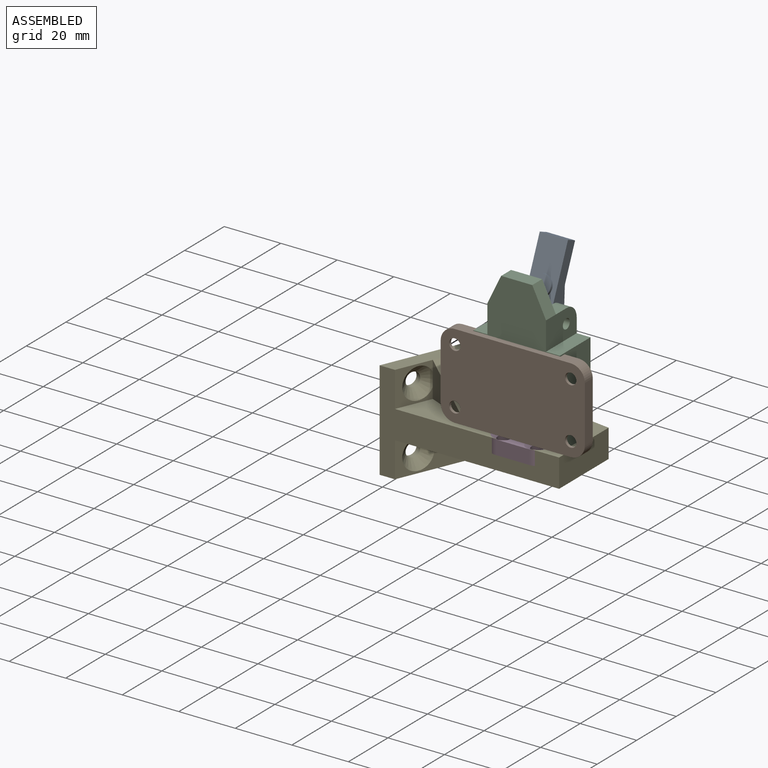
[diagram: assembled view]
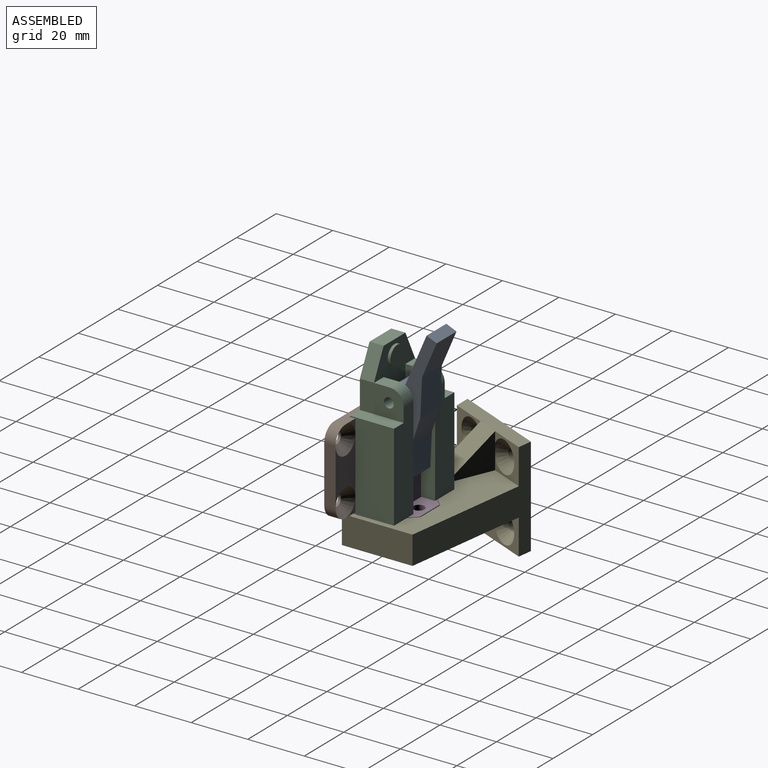
[diagram: assembled view, second angle]
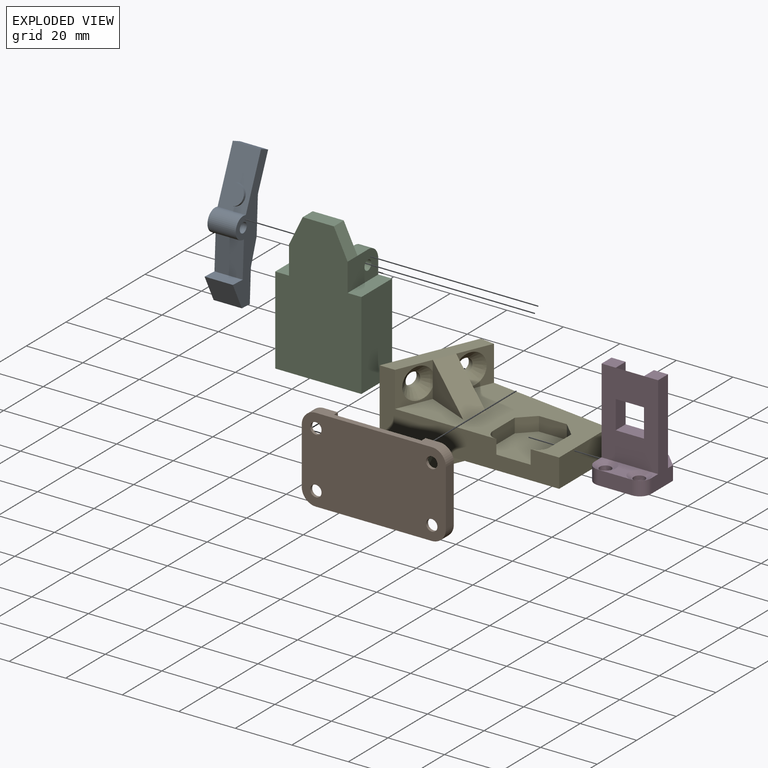
[diagram: exploded view]
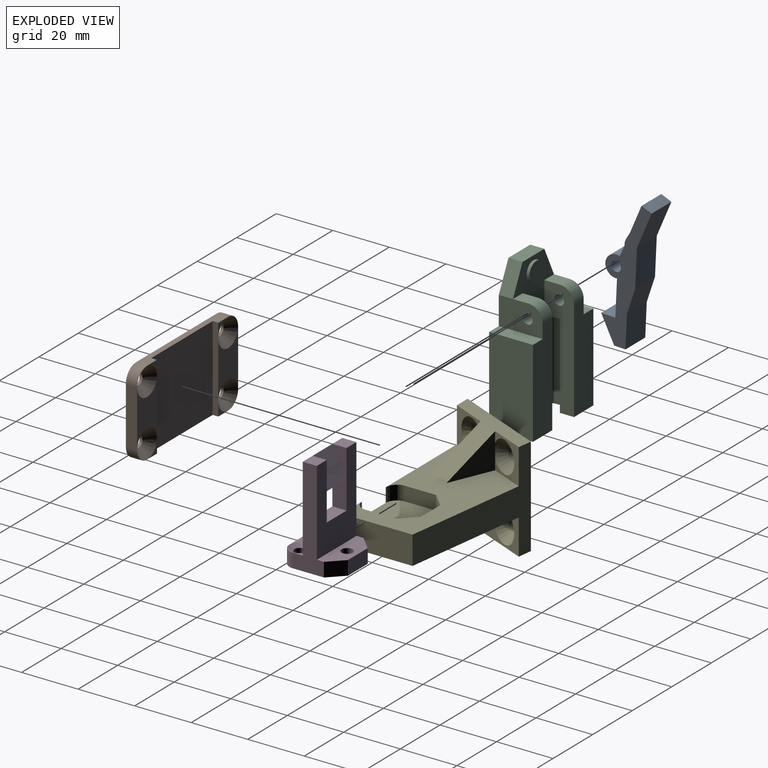
[diagram: exploded view, second angle]
ASSEMBLY  parts=5 mates=3
PART A: 16 faces, bbox 47.6x16.1x10 mm
  f0: plane 10x8.93mm, normal (-0.27,0.96,0), area 92.7mm2, adj f1,f10,f12,f13
  f1: plane 11.57x10mm, normal (0,1,0), area 115.7mm2, adj f0,f2,f12,f13
  f2: plane 10x4mm, normal (-1,0,0), area 40mm2, adj f1,f3,f12,f13
  f3: plane 10x9mm, normal (-0.49,-0.87,0), area 103mm2, adj f2,f4,f12,f13
  f4: plane 10x5mm, normal (1,0,0), area 50mm2, adj f3,f5,f12,f13
  f5: plane 12.73x10mm, normal (0,-1,0), area 127.3mm2, adj f4,f6,f12,f13
  f6: cylinder r=3.8mm len=10mm, axis (0,0,-1), area 136.1mm2, adj f5,f7,f12,f13
  f7: plane 18.5x10mm, normal (0.35,-0.94,0), area 158.7mm2, adj f6,f8,f12,f13,f14
  f8: plane 10x3.65mm, normal (0.94,0.35,0), area 38.9mm2, adj f7,f9,f12,f13
  f9: plane 12.48x10mm, normal (-0.35,0.94,0), area 133mm2, adj f8,f10,f12,f13
  f10: plane 13.3x10mm, normal (0,1,0), area 133mm2, adj f0,f9,f12,f13
  f11: cylinder r=1.75mm len=10mm, axis (0,0,-1), area 110mm2, adj f12,f13
  f12: plane 47.63x16.11mm, normal (0,0,1), area 266.8mm2, adj f0,f1,f2,f3,f4,f5,f6,f7
  f13: plane 47.63x16.11mm, normal (0,0,-1), area 266.8mm2, adj f0,f1,f2,f3,f4,f5,f6,f7
  f14: cylinder r=3.5mm len=7mm, axis (-0.35,0.94,0), area 22mm2, adj f7,f15
  f15: plane 7x6.57mm, normal (0.35,-0.94,0), area 38.5mm2, adj f14
PART B: 26 faces, bbox 30x51x4 mm
  f0: plane 5x5mm, normal (0,0,1), area 5.4mm2, adj f8,f15,f20
  f1: plane 5x5mm, normal (0,0,1), area 5.4mm2, adj f6,f15,f21
  f2: plane 20x10mm, normal (0,0,1), area 121.5mm2, adj f7,f15,f20,f21
  f3: plane 5x5mm, normal (0,0,1), area 5.4mm2, adj f8,f16,f18
  f4: plane 20x10mm, normal (0,0,1), area 121.5mm2, adj f12,f16,f18,f19
  f5: plane 31x30mm, normal (0,0,1), area 930mm2, adj f6,f8,f15,f16
  f6: plane 41x4mm, normal (1,0,0), area 102mm2, adj f1,f5,f14,f15,f16,f17,f22,f25
  f7: plane 20x4mm, normal (0,1,0), area 80mm2, adj f2,f14,f22,f23
  f8: plane 41x4mm, normal (-1,0,0), area 102mm2, adj f0,f3,f5,f14,f15,f16,f23,f24
  f9: cylinder r=2mm len=4mm, axis (0,0,-1), area 12.6mm2, adj f14,f21
  f10: cylinder r=2mm len=4mm, axis (0,0,-1), area 12.6mm2, adj f14,f18
  f11: cylinder r=2mm len=4mm, axis (0,0,-1), area 12.6mm2, adj f14,f19
  f12: plane 20x4mm, normal (0,-1,0), area 80mm2, adj f4,f14,f24,f25
  f13: cylinder r=2mm len=4mm, axis (0,0,-1), area 12.6mm2, adj f14,f20
  f14: plane 51x30mm, normal (0,0,-1), area 1458.3mm2, adj f6,f7,f8,f9,f10,f11,f12,f13
  f15: plane 30x2mm, normal (0,-1,0), area 60mm2, adj f0,f1,f2,f5,f6,f8
  f16: plane 30x2mm, normal (0,1,0), area 60mm2, adj f3,f4,f5,f6,f8,f17
  f17: plane 5x5mm, normal (0,0,1), area 5.4mm2, adj f6,f16,f19
  f18: cone r=2mm half-angle=45deg, axis (0,0,1), area 93.3mm2, adj f3,f4,f10,f24
  f19: cone r=2mm half-angle=45deg, axis (0,0,1), area 93.3mm2, adj f4,f11,f17,f25
  f20: cone r=2mm half-angle=45deg, axis (0,0,1), area 93.3mm2, adj f0,f2,f13,f23
  f21: cone r=2mm half-angle=45deg, axis (0,0,1), area 93.3mm2, adj f1,f2,f9,f22
  f22: cylinder r=5mm len=5mm, axis (0,0,-1), area 31.4mm2, adj f6,f7,f14,f21
  f23: cylinder r=5mm len=5mm, axis (0,0,1), area 31.4mm2, adj f7,f8,f14,f20
  f24: cylinder r=5mm len=5mm, axis (0,0,-1), area 31.4mm2, adj f8,f12,f14,f18
  f25: cylinder r=5mm len=5mm, axis (0,0,1), area 31.4mm2, adj f6,f12,f14,f19
PART C: 30 faces, bbox 30.5x15.5x51 mm
  f0: plane 51x20.75mm, normal (0,1,0), area 856.3mm2, adj f2,f4,f7,f8,f10,f15,f16,f17
  f1: plane 15.5x10mm, normal (1,0,0), area 140mm2, adj f3,f4,f5,f14,f22,f25,f28
  f2: plane 11x5mm, normal (0,0,1), area 55mm2, adj f0,f3,f24,f25
  f3: plane 51x30.5mm, normal (0,-1,0), area 1311.8mm2, adj f1,f2,f5,f12,f13,f16,f18,f20
  f4: plane 5.5x4.88mm, normal (0,0,1), area 26.8mm2, adj f0,f1,f15,f28
  f5: plane 15.5x4.88mm, normal (0,0,1), area 75.6mm2, adj f1,f3,f13,f14
  f6: plane 30x4.75mm, normal (0,-1,0), area 142.5mm2, adj f7,f15,f16,f19
  f7: plane 30x5.5mm, normal (-1,0,0), area 165mm2, adj f0,f6,f16,f19
  f8: plane 30x5.5mm, normal (1,0,0), area 165mm2, adj f0,f9,f16,f17
  f9: plane 30x4.75mm, normal (0,-1,0), area 142.5mm2, adj f8,f10,f16,f17
  f10: plane 41x10.5mm, normal (1,0,0), area 250.5mm2, adj f0,f9,f11,f16,f17,f21,f23,f29
  f11: plane 36x9.75mm, normal (0,1,0), area 326.6mm2, adj f10,f12,f16,f18,f20,f29
  f12: plane 31x15.5mm, normal (-1,0,0), area 480.5mm2, adj f3,f11,f16,f18
  f13: plane 31x15.5mm, normal (1,0,0), area 480.5mm2, adj f3,f5,f14,f16
  f14: plane 36x9.75mm, normal (0,1,0), area 326.6mm2, adj f1,f5,f13,f15,f16,f28
  f15: plane 41x10.5mm, normal (-1,0,0), area 250.5mm2, adj f0,f4,f6,f14,f16,f19,f22,f28
  f16: plane 30.5x15.5mm, normal (0,0,-1), area 305mm2, adj f0,f3,f6,f7,f8,f9,f10,f11
  f17: plane 5.5x4.75mm, normal (0,0,-1), area 26.1mm2, adj f0,f8,f9,f10
  f18: plane 15.5x4.88mm, normal (0,0,1), area 75.6mm2, adj f3,f11,f12,f20
  f19: plane 5.5x4.75mm, normal (0,0,-1), area 26.1mm2, adj f0,f6,f7,f15
  f20: plane 15.5x10mm, normal (-1,0,0), area 140mm2, adj f3,f11,f18,f21,f23,f24,f29
  f21: plane 5.5x4.88mm, normal (0,0,1), area 26.8mm2, adj f0,f10,f20,f29
  f22: cylinder r=1.75mm len=4.88mm, axis (1,0,0), area 53.6mm2, adj f1,f15
  f23: cylinder r=1.75mm len=4.88mm, axis (1,0,0), area 53.6mm2, adj f10,f20
  f24: plane 10x5mm, normal (-0.9,0,0.44), area 55.6mm2, adj f0,f2,f3,f20
  f25: plane 10x5mm, normal (0.9,0,0.44), area 55.6mm2, adj f0,f1,f2,f3
  f26: cylinder r=3.5mm len=7mm, axis (0,-1,0), area 22mm2, adj f0,f27
  f27: plane 7x7mm, normal (0,1,0), area 38.5mm2, adj f26
  f28: cylinder r=5mm len=5mm, axis (1,0,0), area 38.3mm2, adj f1,f4,f14,f15
  f29: cylinder r=5mm len=5mm, axis (1,0,0), area 38.3mm2, adj f10,f11,f20,f21
PART D: 31 faces, bbox 35x20x20 mm
  f0: cylinder r=1.25mm len=3mm, axis (1,0,0), area 23.6mm2, adj f9,f28
  f1: plane 7.5x4mm, normal (1,0,0), area 4.5mm2, adj f6,f12,f24,f26
  f2: plane 12x7.5mm, normal (1,0,0), area 45.8mm2, adj f6,f10,f22,f24
  f3: plane 30x20mm, normal (0,1,0), area 400mm2, adj f4,f5,f7,f12,f13,f14,f15,f17
  f4: plane 5x5mm, normal (1,0,0), area 25mm2, adj f3,f6,f12,f20
  f5: plane 5x5mm, normal (1,0,0), area 25mm2, adj f3,f6,f13,f18
  f6: plane 30x20mm, normal (0,-1,0), area 500mm2, adj f1,f2,f4,f5,f11,f12,f13,f14
  f7: plane 20x7.5mm, normal (1,0,0), area 112.4mm2, adj f3,f8,f12,f13,f27,f29,f30
  f8: plane 10x5mm, normal (0,1,0), area 50mm2, adj f7,f9,f29,f30
  f9: plane 20x20mm, normal (-1,0,0), area 338.1mm2, adj f0,f8,f10,f12,f13,f21,f23,f25
  f10: plane 12x5mm, normal (0,-1,0), area 60mm2, adj f2,f9,f25,f26
  f11: plane 7.5x4mm, normal (1,0,0), area 4.5mm2, adj f6,f13,f22,f25
  f12: plane 35x11mm, normal (0,0,1), area 205mm2, adj f1,f3,f4,f6,f7,f9,f26,f29
  f13: plane 35x11mm, normal (0,0,-1), area 205mm2, adj f3,f5,f6,f7,f9,f11,f25,f30
  f14: plane 10x5mm, normal (1,0,0), area 50mm2, adj f3,f6,f15,f17
  f15: plane 10x5mm, normal (0,0,-1), area 50mm2, adj f3,f6,f14,f16
  f16: plane 10x5mm, normal (-1,0,0), area 50mm2, adj f6,f15,f17,f19
  f17: plane 10x5mm, normal (0,0,1), area 50mm2, adj f3,f6,f14,f16
  f18: plane 10x5mm, normal (0,0,1), area 25mm2, adj f3,f5,f19
  f19: plane 10x10mm, normal (0.45,0.89,0), area 111.8mm2, adj f6,f16,f18,f20
  f20: plane 10x5mm, normal (0,0,-1), area 25mm2, adj f3,f4,f19
  f21: cylinder r=2mm len=4mm, axis (1,0,0), area 50.1mm2, adj f9,f22
  f22: cone r=2mm half-angle=60deg, axis (1,0,0), area 36.5mm2, adj f2,f11,f21
  f23: cylinder r=2mm len=4mm, axis (1,0,0), area 50.1mm2, adj f9,f24
  f24: cone r=2mm half-angle=60deg, axis (1,0,0), area 36.5mm2, adj f1,f2,f23
  f25: cylinder r=4mm len=5mm, axis (1,0,0), area 31.4mm2, adj f9,f10,f11,f13
  f26: cylinder r=4mm len=5mm, axis (-1,0,0), area 31.4mm2, adj f1,f9,f10,f12
  f27: cylinder r=2mm len=4mm, axis (1,0,0), area 25.1mm2, adj f7,f28
  f28: plane 4x4mm, normal (1,0,0), area 7.7mm2, adj f0,f27
  f29: plane 5x5mm, normal (0,0.71,0.71), area 35.4mm2, adj f7,f8,f9,f12
  f30: plane 5x5mm, normal (0,0.71,-0.71), area 35.4mm2, adj f7,f8,f9,f13
PART E: 34 faces, bbox 63.5x31.9x35 mm
  f0: plane 12.5x11.91mm, normal (0.92,-0.39,0), area 68.5mm2, adj f2,f7,f18,f26,f31
  f1: plane 58.1x31.18mm, normal (0,0,-1), area 1466.5mm2, adj f4,f5,f7,f8,f9,f19
  f2: plane 58.1x31.18mm, normal (0,0,1), area 965.8mm2, adj f0,f4,f5,f7,f9,f10,f11,f12
  f3: plane 20x20mm, normal (0,0,1), area 367.9mm2, adj f7,f8,f10,f11,f12,f13,f14,f15
  f4: plane 25x10mm, normal (1,0,0), area 250mm2, adj f1,f2,f5,f9
  f5: plane 50x35mm, normal (0.14,0.99,0), area 634.2mm2, adj f1,f2,f4,f6,f17,f18,f19,f20
  f6: plane 35x31.88mm, normal (-0.92,0.39,0), area 1133.7mm2, adj f5,f7,f18,f20,f21,f22,f23,f24
  f7: plane 53.24x35mm, normal (0,-1,0), area 608.7mm2, adj f0,f1,f2,f3,f6,f8,f10,f18
  f8: cylinder r=4mm len=5mm, axis (0,0,1), area 1mm2, adj f1,f3,f7,f9
  f9: plane 10.1x10mm, normal (0,-1,0), area 101mm2, adj f1,f2,f4,f8,f16
  f10: cylinder r=4mm len=5mm, axis (0,0,-1), area 31.4mm2, adj f2,f3,f7,f11
  f11: plane 11x5mm, normal (1,0,0), area 55mm2, adj f2,f3,f10,f12
  f12: plane 5x5mm, normal (0.71,-0.71,0), area 35.4mm2, adj f2,f3,f11,f13
  f13: plane 9.9x5mm, normal (0,-1,0), area 49.5mm2, adj f2,f3,f12,f14
  f14: plane 5.1x5mm, normal (-0.7,-0.71,0), area 35.7mm2, adj f2,f3,f13,f15
  f15: plane 11x5mm, normal (-1,0,0), area 55mm2, adj f2,f3,f14,f16
  f16: cylinder r=4mm len=5mm, axis (0,0,-1), area 30.9mm2, adj f2,f3,f9,f15
  f17: plane 12.5x11.91mm, normal (0.92,-0.39,0), area 68.5mm2, adj f2,f5,f18,f25,f30
  f18: plane 31.88x18.67mm, normal (0,0,1), area 171.3mm2, adj f0,f5,f6,f7,f17,f33
  f19: plane 31.18x13.23mm, normal (0.92,-0.39,0), area 233.3mm2, adj f1,f5,f7,f20,f27,f28
  f20: plane 31.88x18.67mm, normal (0,0,-1), area 171.3mm2, adj f5,f6,f7,f19
  f21: cylinder r=2.5mm len=5.38mm, axis (0.92,-0.39,0), area 31.4mm2, adj f6,f28
  f22: cylinder r=2.5mm len=5.38mm, axis (0.92,-0.39,0), area 31.4mm2, adj f6,f27
  f23: cylinder r=2.5mm len=5.38mm, axis (0.92,-0.39,0), area 31.4mm2, adj f6,f26
  f24: cylinder r=2.5mm len=5.38mm, axis (0.92,-0.39,0), area 31.4mm2, adj f6,f25
  f25: cone r=2.5mm half-angle=45deg, axis (0.92,-0.39,0), area 106.6mm2, adj f17,f24,f29
  f26: cone r=2.5mm half-angle=45deg, axis (0.92,-0.39,0), area 106.6mm2, adj f0,f23,f32
  f27: cone r=2.5mm half-angle=45deg, axis (0.92,-0.39,0), area 106.6mm2, adj f19,f22
  f28: cone r=2.5mm half-angle=45deg, axis (0.92,-0.39,0), area 106.6mm2, adj f19,f21
  f29: plane 4.86x0.52mm, normal (-0.92,0.39,0), area 1.9mm2, adj f25,f30
  f30: plane 15.29x12.5mm, normal (0.39,0.92,0), area 103.8mm2, adj f2,f17,f29,f33
  f31: plane 15.29x12.5mm, normal (-0.39,-0.92,0), area 103.8mm2, adj f0,f2,f32,f33
  f32: plane 4.86x0.52mm, normal (-0.92,0.39,0), area 1.9mm2, adj f26,f31
  f33: plane 18.41x13.85mm, normal (0.55,-0.23,0.8), area 166.3mm2, adj f2,f18,f30,f31
PLACE A rot(axis=(-0.02,-1,0.02),90deg) t=(-11.82,33.02,-14.48)mm
PLACE B rot(axis=(-0.58,0.58,0.58),120deg) t=(-16.32,23.5,-13.82)mm
PLACE C t=(-16.32,33.25,-29.6)mm
PLACE D rot(axis=(0,-1,0),90deg) t=(-6.04,33.06,-16.26)mm
PLACE E t=(-63.37,23.4,-35.01)mm
MATE fastened D.f9 <-> E.f3  axis (0,0,-1) through (-16.04,33,-35.01)mm
MATE revolute A.f6 <-> C.f28  axis (1,0,0) through (-21.82,36,6.4)mm
MATE planar B.f5 <-> C.f3  axis (0,1,0) through (-16.32,25.5,-13.82)mm
